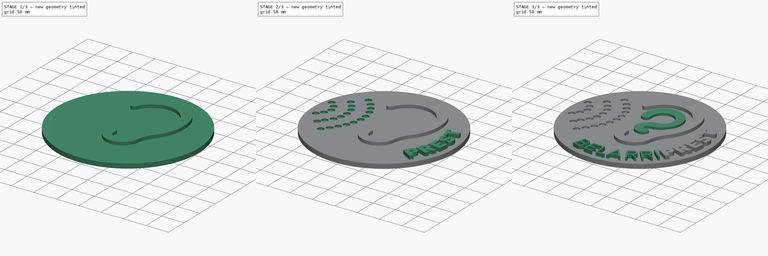
[diagram: build sequence overview — one tinted view per stage of 3, left to right]
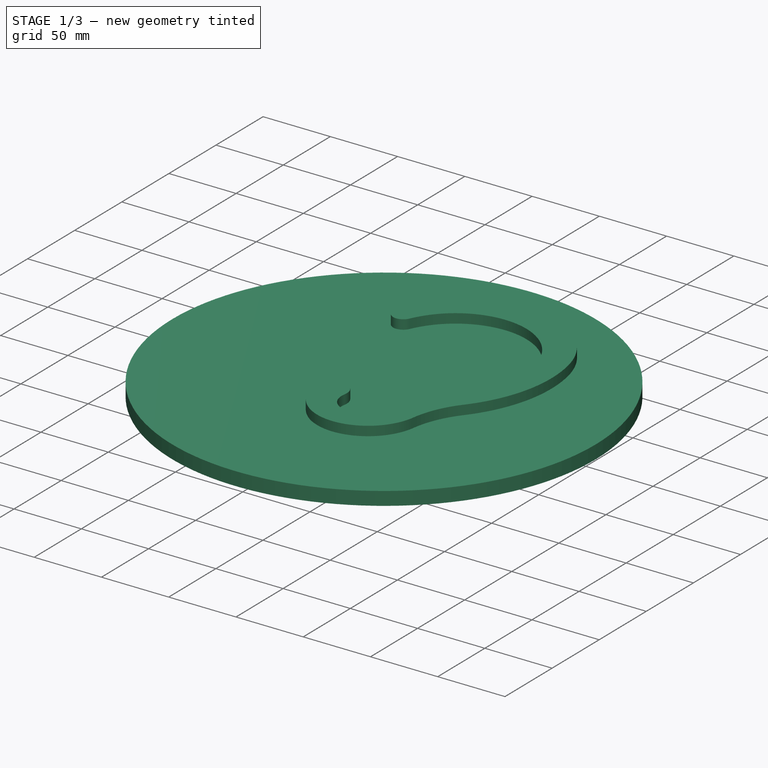
[diagram: stage 1 of 3 — iso view after this stage's code; geometry added in this stage tinted green]
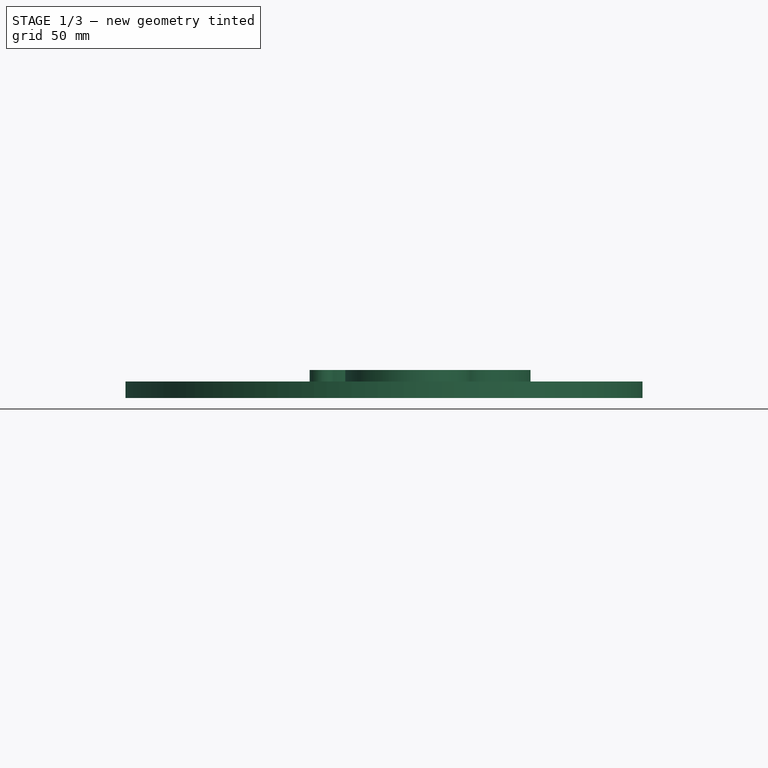
[diagram: stage 1 of 3 — front view after this stage's code; geometry added in this stage tinted green]
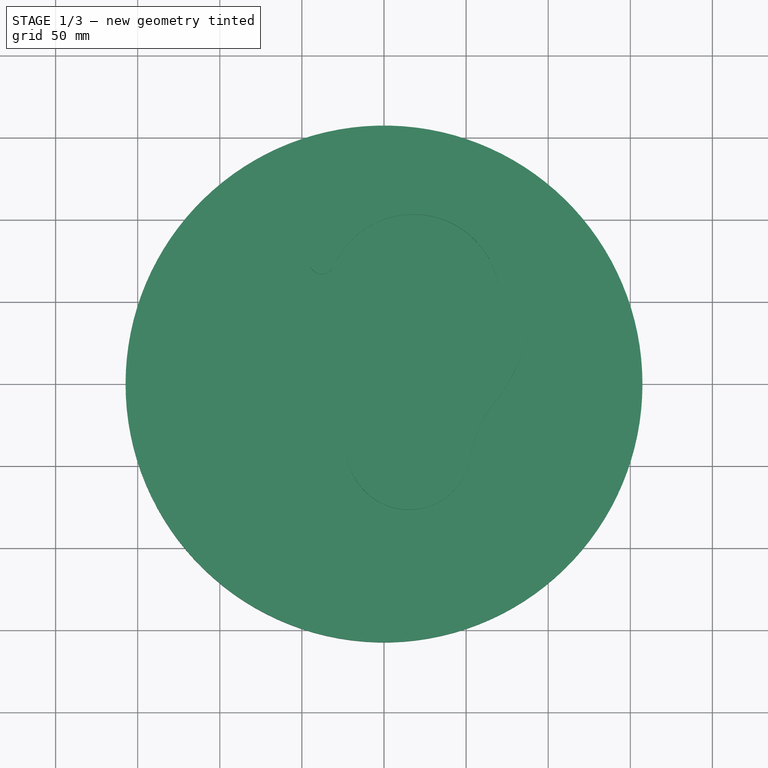
[diagram: stage 1 of 3 — top view after this stage's code; geometry added in this stage tinted green]
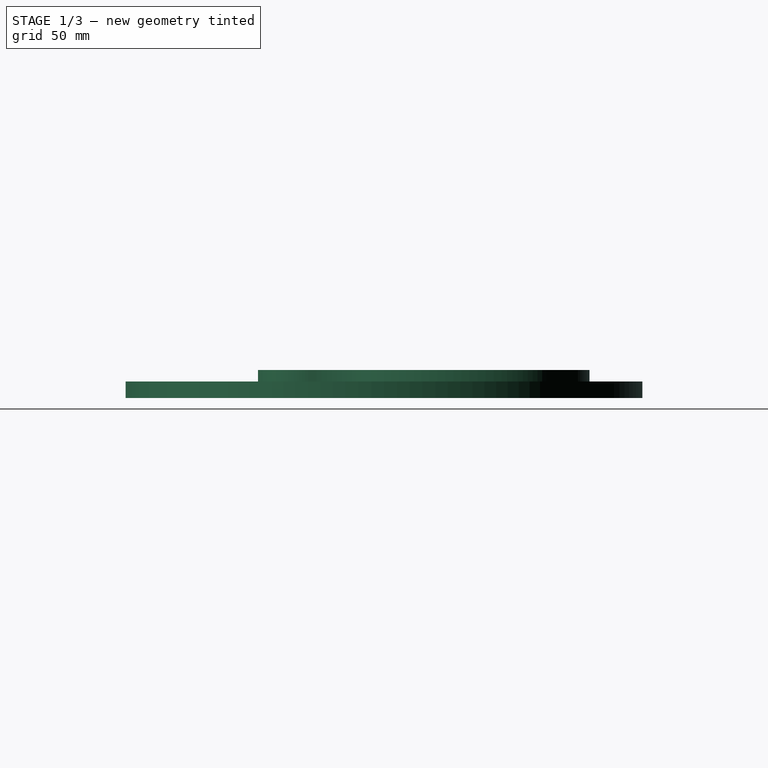
[diagram: stage 1 of 3 — right view after this stage's code; geometry added in this stage tinted green]
FCSTD DOCUMENT  (FreeCAD 0.17R13509 (Git))
Label: belarribiziprint
License: All rights reserved
LicenseURL: http://en.wikipedia.org/wiki/All_rights_reserved
objects: Sketcher::SketchObject×7, PartDesign::Pad×5, Image::ImagePlane×1, PartDesign::Pocket×1, PartDesign::Body×1
note: 20 computed .brp shape members not serialized (recipe doc carries the construction recipe); baked Part::Feature solids carry a one-line shape summary decoded from their .brp

FEATURE [Image::ImagePlane] ImagePlane
  XSize = 353
  YSize = 353
FEATURE [Sketcher::SketchObject] Sketch
  MapMode = 5
  Support = -> [XY_Plane]
  sketch-geometry (1):
    g0: Circle CenterX=0 CenterY=0 CenterZ=0 NormalX=0 NormalY=0 NormalZ=1 AngleXU=0 Radius=157.395
FEATURE [Sketcher::SketchObject] Sketch001
  MapMode = 5
  sketch-geometry (13):
    g0: ArcOfCircle CenterX=17.8472 CenterY=50.3819 CenterZ=0 NormalX=0 NormalY=0 NormalZ=1 AngleXU=0 Radius=52.8017 StartAngle=6.2229 EndAngle=8.72772
    g1: ArcOfCircle CenterX=21.4621 CenterY=47.3553 CenterZ=0 NormalX=0 NormalY=0 NormalZ=1 AngleXU=0 Radius=57.5163 StartAngle=2.44453 EndAngle=2.71335
    g2: ArcOfCircle CenterX=-37.7398 CenterY=74.3807 CenterZ=0 NormalX=0 NormalY=0 NormalZ=1 AngleXU=0 Radius=7.56233 StartAngle=2.85018 EndAngle=5.85494
    g3: ArcOfCircle CenterX=20.3403 CenterY=56.9594 CenterZ=0 NormalX=0 NormalY=0 NormalZ=1 AngleXU=0 Radius=68.199 StartAngle=0.216657 EndAngle=2.85018
    g4: ArcOfCircle CenterX=-9.33883 CenterY=50.4266 CenterZ=0 NormalX=0 NormalY=0 NormalZ=1 AngleXU=0 Radius=98.5886 StartAngle=5.6004 EndAngle=6.49984
    g5: ArcOfCircle CenterX=119.355 CenterY=-54.2383 CenterZ=0 NormalX=0 NormalY=0 NormalZ=1 AngleXU=0 Radius=67.2938 StartAngle=2.4588 EndAngle=2.99451
    g6: ArcOfCircle CenterX=15.3255 CenterY=-38.8257 CenterZ=0 NormalX=0 NormalY=0 NormalZ=1 AngleXU=0 Radius=37.8717 StartAngle=3.88556 EndAngle=6.1361
    g7: ArcOfCircle CenterX=18.7419 CenterY=-35.6812 CenterZ=0 NormalX=0 NormalY=0 NormalZ=1 AngleXU=0 Radius=42.515 StartAngle=3.24432 EndAngle=3.88556
    g8: ArcOfCircle CenterX=-12.0422 CenterY=-38.8548 CenterZ=0 NormalX=0 NormalY=0 NormalZ=1 AngleXU=0 Radius=11.5677 StartAngle=6.10631 EndAngle=9.52751
    g9: ArcOfCircle CenterX=14.5445 CenterY=-43.6069 CenterZ=0 NormalX=0 NormalY=0 NormalZ=1 AngleXU=0 Radius=15.4403 StartAngle=2.96472 EndAngle=6.16701
    g10: ArcOfCircle CenterX=122.094 CenterY=-56.1575 CenterZ=0 NormalX=0 NormalY=0 NormalZ=1 AngleXU=0 Radius=92.8386 StartAngle=2.6782 EndAngle=3.02542
    g11: ArcOfCircle CenterX=178.448 CenterY=-84.3171 CenterZ=0 NormalX=0 NormalY=0 NormalZ=1 AngleXU=0 Radius=155.837 StartAngle=2.45776 EndAngle=2.6782
    g12: ArcOfCircle CenterX=12.8033 CenterY=50.6864 CenterZ=0 NormalX=0 NormalY=0 NormalZ=1 AngleXU=0 Radius=57.8548 StartAngle=5.59935 EndAngle=6.2229
  constraints (15):
    c: Tangent(g1,g2)
    c: Tangent(g3,g4)
    c: Tangent(g6,g5) = 1.5708
    c: Tangent(g5,g4) = 1.5708
    c: Tangent(g4,g3) = -1.5708
    c: Tangent(g3,g2) = -1.5708
    c: Tangent(g2,g1) = 1.5708
    c: Tangent(g1,g0) = -1.5708
    c: Tangent(g12,g0) = -1.5708
    c: Tangent(g12,g11) = 1.5708
    c: Tangent(g11,g10) = -1.5708
    c: Tangent(g10,g9) = 1.5708
    c: Tangent(g9,g8) = 1.5708
    c: Tangent(g8,g7) = -1.5708
    c: Tangent(g7,g6) = -1.5708
FEATURE [PartDesign::Pad] Pad
  Length = 10
  Length2 = 100
  Profile = -> Sketch
  Refine = true
  Type = 0
FEATURE [PartDesign::Pad] Pad001
  BaseFeature = -> Pad
  Length = 17
  Length2 = 100
  Profile = -> Sketch001
  Refine = true
  Type = 0
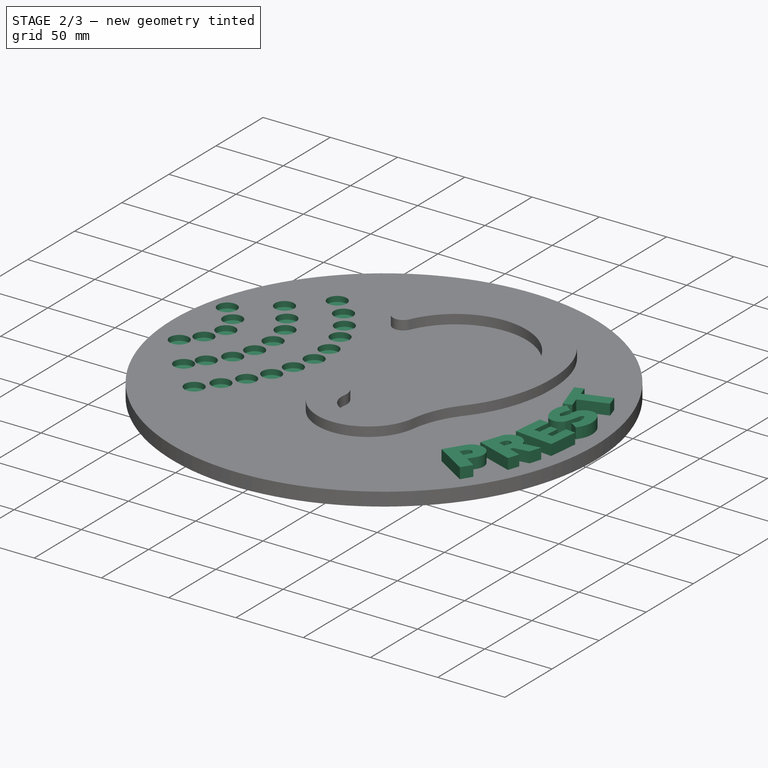
[diagram: stage 2 of 3 — iso view after this stage's code; geometry added in this stage tinted green]
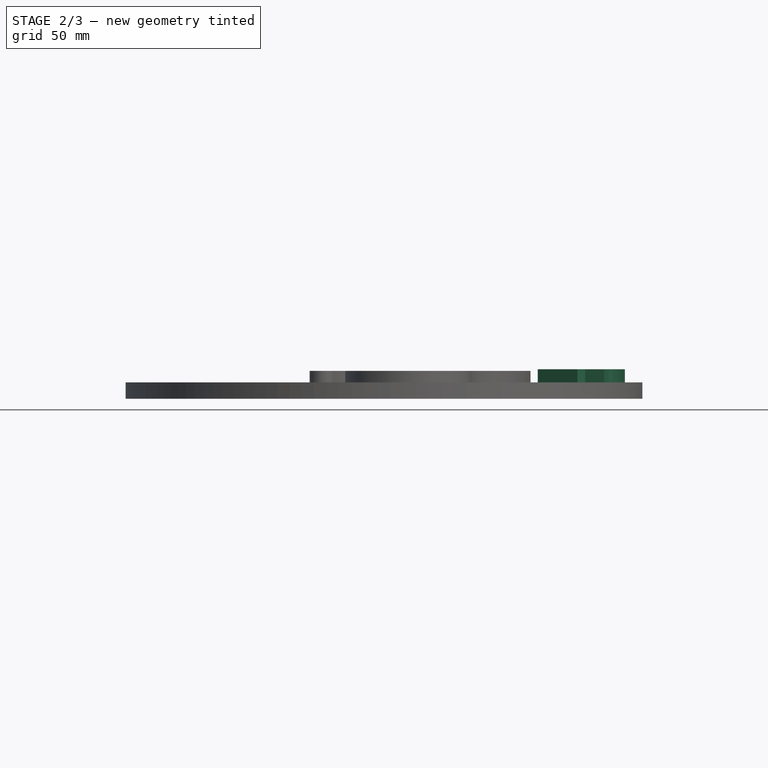
[diagram: stage 2 of 3 — front view after this stage's code; geometry added in this stage tinted green]
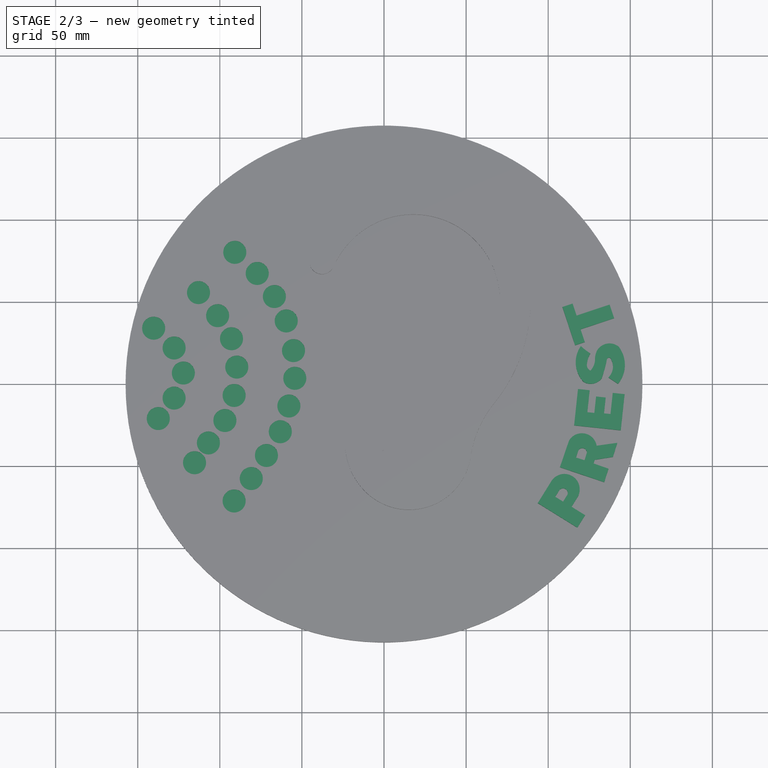
[diagram: stage 2 of 3 — top view after this stage's code; geometry added in this stage tinted green]
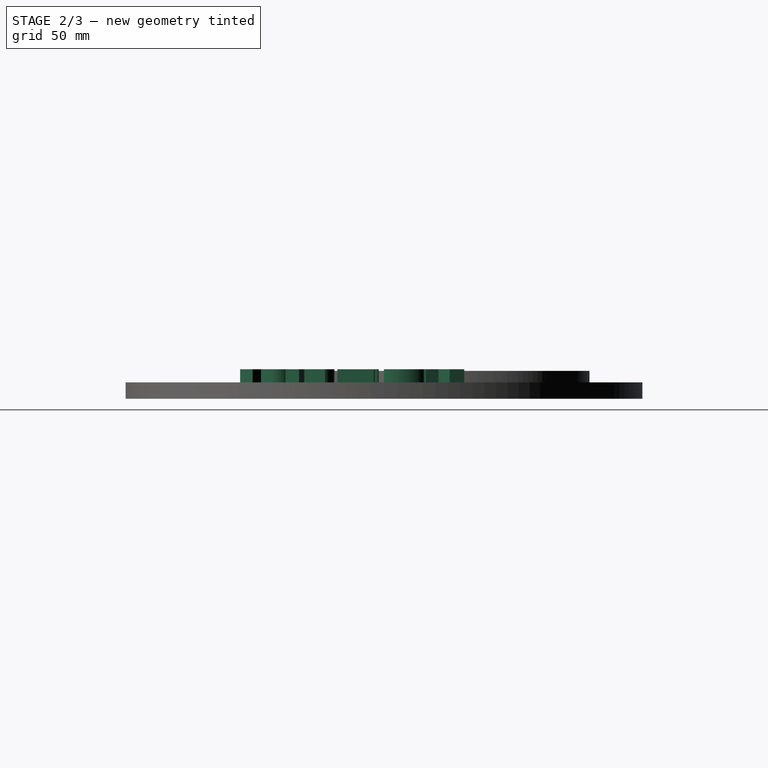
[diagram: stage 2 of 3 — right view after this stage's code; geometry added in this stage tinted green]
FEATURE [Sketcher::SketchObject] Sketch002
  MapMode = 5
  Placement = pos=(0,0,10) rot=(0,0,1;0rad)
  Support = -> [Pad001]
  sketch-geometry (24):
    g0: Circle CenterX=-90.8768 CenterY=80.1764 CenterZ=0 NormalX=0 NormalY=0 NormalZ=1 AngleXU=0 Radius=7.01585
    g1: Circle CenterX=-77.2181 CenterY=67.3212 CenterZ=0 NormalX=0 NormalY=0 NormalZ=1 AngleXU=0 Radius=7.01585
    g2: Circle CenterX=-66.7732 CenterY=53.2607 CenterZ=0 NormalX=0 NormalY=0 NormalZ=1 AngleXU=0 Radius=7.01585
    g3: Circle CenterX=-59.5422 CenterY=38.3969 CenterZ=0 NormalX=0 NormalY=0 NormalZ=1 AngleXU=0 Radius=7.01585
    g4: Circle CenterX=-55.1232 CenterY=20.3192 CenterZ=0 NormalX=0 NormalY=0 NormalZ=1 AngleXU=0 Radius=7.01585
    g5: Circle CenterX=-54.3197 CenterY=3.44667 CenterZ=0 NormalX=0 NormalY=0 NormalZ=1 AngleXU=0 Radius=7.01585
    g6: Circle CenterX=-57.9353 CenterY=-13.4259 CenterZ=0 NormalX=0 NormalY=0 NormalZ=1 AngleXU=0 Radius=7.01585
    g7: Circle CenterX=-63.1577 CenterY=-29.0932 CenterZ=0 NormalX=0 NormalY=0 NormalZ=1 AngleXU=0 Radius=7.01585
    g8: Circle CenterX=-89.6716 CenterY=10.276 CenterZ=0 NormalX=0 NormalY=0 NormalZ=1 AngleXU=0 Radius=7.01585
    g9: Circle CenterX=-71.5939 CenterY=-43.5553 CenterZ=0 NormalX=0 NormalY=0 NormalZ=1 AngleXU=0 Radius=7.01585
    g10: Circle CenterX=-96.9027 CenterY=-22.2638 CenterZ=0 NormalX=0 NormalY=0 NormalZ=1 AngleXU=0 Radius=7.01585
    g11: Circle CenterX=-106.946 CenterY=-35.9225 CenterZ=0 NormalX=0 NormalY=0 NormalZ=1 AngleXU=0 Radius=7.01585
    g12: Circle CenterX=-91.2786 CenterY=-6.99823 CenterZ=0 NormalX=0 NormalY=0 NormalZ=1 AngleXU=0 Radius=7.01585
    g13: Circle CenterX=-80.8337 CenterY=-57.6158 CenterZ=0 NormalX=0 NormalY=0 NormalZ=1 AngleXU=0 Radius=7.01585
    g14: Circle CenterX=-91.2786 CenterY=-71.2745 CenterZ=0 NormalX=0 NormalY=0 NormalZ=1 AngleXU=0 Radius=7.01585
    g15: Circle CenterX=-115.382 CenterY=-47.9743 CenterZ=0 NormalX=0 NormalY=0 NormalZ=1 AngleXU=0 Radius=7.01585
    g16: Circle CenterX=-92.8855 CenterY=27.5503 CenterZ=0 NormalX=0 NormalY=0 NormalZ=1 AngleXU=0 Radius=7.01585
    g17: Circle CenterX=-101.322 CenterY=41.6107 CenterZ=0 NormalX=0 NormalY=0 NormalZ=1 AngleXU=0 Radius=7.01585
    g18: Circle CenterX=-112.972 CenterY=55.6711 CenterZ=0 NormalX=0 NormalY=0 NormalZ=1 AngleXU=0 Radius=7.01585
    g19: Circle CenterX=-140.289 CenterY=33.9779 CenterZ=0 NormalX=0 NormalY=0 NormalZ=1 AngleXU=0 Radius=7.01585
    g20: Circle CenterX=-127.836 CenterY=21.9261 CenterZ=0 NormalX=0 NormalY=0 NormalZ=1 AngleXU=0 Radius=7.01585
    g21: Circle CenterX=-137.477 CenterY=-21.0587 CenterZ=0 NormalX=0 NormalY=0 NormalZ=1 AngleXU=0 Radius=7.01585
    g22: Circle CenterX=-127.836 CenterY=-8.60514 CenterZ=0 NormalX=0 NormalY=0 NormalZ=1 AngleXU=0 Radius=7.01585
    g23: Circle CenterX=-122.211 CenterY=6.66047 CenterZ=0 NormalX=0 NormalY=0 NormalZ=1 AngleXU=0 Radius=7.01585
  constraints (23):
    c: Equal(g0,g1)
    c: Equal(g1,g2)
    c: Equal(g2,g3)
    c: Equal(g3,g4)
    c: Equal(g4,g5)
    c: Equal(g5,g6)
    c: Equal(g6,g7)
    c: Equal(g7,g8)
    c: Equal(g8,g12)
    c: Equal(g12,g10)
    c: Equal(g10,g9)
    c: Equal(g9,g11)
    c: Equal(g11,g15)
    c: Equal(g15,g13)
    c: Equal(g13,g14)
    c: Equal(g0,g16)
    c: Equal(g16,g17)
    c: Equal(g17,g18)
    c: Equal(g18,g19)
    c: Equal(g19,g20)
    c: Equal(g20,g21)
    c: Equal(g21,g22)
    c: Equal(g22,g23)
FEATURE [PartDesign::Pocket] Pocket
  BaseFeature = -> Pad001
  Length = 4
  Length2 = 100
  Profile = -> Sketch002
  Refine = true
  Type = 0
FEATURE [Sketcher::SketchObject] Sketch003
  MapMode = 5
  Support = -> [XY_Plane]
  sketch-geometry (128):
    g0: LineSegment StartX=-45.5117 StartY=-110.116 StartZ=0 EndX=-32.5193 EndY=-114.072 EndZ=0
    g1: LineSegment StartX=-35.0481 StartY=-115.808 StartZ=0 EndX=-42.73 EndY=-113.469 EndZ=0
    g2: LineSegment StartX=-42.73 StartY=-113.469 StartZ=0 EndX=-45.5213 EndY=-122.636 EndZ=0
    g3: LineSegment StartX=-45.5213 StartY=-122.636 StartZ=0 EndX=-37.8394 EndY=-124.975 EndZ=0
    g4: LineSegment StartX=-38.0733 StartY=-127.797 StartZ=0 EndX=-46.3297 EndY=-125.283 EndZ=0
    g5: LineSegment StartX=-46.3297 StartY=-125.283 StartZ=0 EndX=-49.3211 EndY=-135.108 EndZ=0
    g6: LineSegment StartX=-49.3211 StartY=-135.108 StartZ=0 EndX=-41.0647 EndY=-137.622 EndZ=0
    g7: ArcOfCircle CenterX=-35.9888 CenterY=-120.271 CenterZ=0 NormalX=0 NormalY=0 NormalZ=1 AngleXU=0 Radius=7.10345 StartAngle=4.89729 EndAngle=7.34371
    g8: ArcOfCircle CenterX=-38.6597 CenterY=-133.551 CenterZ=0 NormalX=0 NormalY=0 NormalZ=1 AngleXU=0 Radius=7.44833 StartAngle=4.33349 EndAngle=7.29074
    g9: LineSegment StartX=-41.4148 StartY=-140.471 StartZ=0 EndX=-53.6822 EndY=-136.736 EndZ=0
    g10: ArcOfCircle CenterX=-36.4437 CenterY=-120.391 CenterZ=0 NormalX=0 NormalY=0 NormalZ=1 AngleXU=0 Radius=4.79139 StartAngle=4.41682 EndAngle=7.55841
    g11: ArcOfCircle CenterX=-39.569 CenterY=-132.709 CenterZ=0 NormalX=0 NormalY=0 NormalZ=1 AngleXU=0 Radius=5.13485 StartAngle=4.41682 EndAngle=7.55841
    g12: LineSegment StartX=-21.6695 StartY=-116.304 StartZ=0 EndX=-24.7768 EndY=-144.743 EndZ=0
    g13: LineSegment StartX=-24.7768 StartY=-144.743 StartZ=0 EndX=-5.59434 EndY=-146.839 EndZ=0
    g14: LineSegment StartX=-5.59434 StartY=-146.839 StartZ=0 EndX=-5.28492 EndY=-144.007 EndZ=0
    g15: LineSegment StartX=-5.28492 StartY=-144.007 StartZ=0 EndX=-20.4543 EndY=-142.349 EndZ=0
    g16: LineSegment StartX=-20.4543 StartY=-142.349 StartZ=0 EndX=-19.3664 EndY=-132.393 EndZ=0
    g17: LineSegment StartX=-19.3664 StartY=-132.393 StartZ=0 EndX=-7.34057 EndY=-133.707 EndZ=0
    g18: LineSegment StartX=-7.34057 StartY=-133.707 StartZ=0 EndX=-6.99 EndY=-130.498 EndZ=0
    g19: LineSegment StartX=-6.99 StartY=-130.498 StartZ=0 EndX=-19.7087 EndY=-129.109 EndZ=0
    g20: LineSegment StartX=-19.7087 StartY=-129.109 StartZ=0 EndX=-18.7139 EndY=-120.005 EndZ=0
    g21: LineSegment StartX=-18.7139 StartY=-120.005 StartZ=0 EndX=-2.96797 EndY=-121.725 EndZ=0
    g22: LineSegment StartX=-2.96797 StartY=-121.725 StartZ=0 EndX=-2.60321 EndY=-118.387 EndZ=0
    g23: LineSegment StartX=-2.60321 StartY=-118.387 StartZ=0 EndX=-21.6695 EndY=-116.304 EndZ=0
    g24: LineSegment StartX=1.13944 StartY=-118.465 StartZ=0 EndX=4.49615 EndY=-118.169 EndZ=0
    g25: LineSegment StartX=4.49615 StartY=-118.169 StartZ=0 EndX=6.73656 EndY=-143.545 EndZ=0
    g26: LineSegment StartX=6.73656 StartY=-143.545 StartZ=0 EndX=20.7174 EndY=-142.311 EndZ=0
    g27: LineSegment StartX=20.7174 StartY=-142.311 StartZ=0 EndX=20.9917 EndY=-145.417 EndZ=0
    g28: LineSegment StartX=20.9917 StartY=-145.417 StartZ=0 EndX=3.6541 EndY=-146.948 EndZ=0
    g29: LineSegment StartX=3.6541 StartY=-146.948 StartZ=0 EndX=1.13944 EndY=-118.465 EndZ=0
    g30: LineSegment StartX=25.9643 StartY=-144.824 StartZ=0 EndX=29.1647 EndY=-144.016 EndZ=0
    g31: LineSegment StartX=29.1647 StartY=-144.016 StartZ=0 EndX=30.2157 EndY=-136.805 EndZ=0
    g32: LineSegment StartX=30.2157 StartY=-136.805 StartZ=0 EndX=44.394 EndY=-133.225 EndZ=0
    g33: LineSegment StartX=44.394 StartY=-133.225 StartZ=0 EndX=48.6664 EndY=-138.264 EndZ=0
    g34: LineSegment StartX=48.6664 StartY=-138.264 StartZ=0 EndX=52.7651 EndY=-137.229 EndZ=0
    g35: LineSegment StartX=52.7651 StartY=-137.229 StartZ=0 EndX=32.5681 EndY=-113.41 EndZ=0
    g36: LineSegment StartX=32.5681 StartY=-113.41 StartZ=0 EndX=30.4653 EndY=-113.941 EndZ=0
    g37: LineSegment StartX=30.4653 StartY=-113.941 StartZ=0 EndX=25.9643 EndY=-144.824 EndZ=0
    g38: LineSegment StartX=30.9647 StartY=-133.309 StartZ=0 EndX=33.0858 EndY=-118.755 EndZ=0
    g39: LineSegment StartX=33.0858 StartY=-118.755 StartZ=0 EndX=42.8763 EndY=-130.301 EndZ=0
    g40: LineSegment StartX=42.8763 StartY=-130.301 StartZ=0 EndX=30.9647 EndY=-133.309 EndZ=0
    g41: LineSegment StartX=57.7051 StartY=-102.796 StartZ=0 EndX=46.8053 EndY=-108.709 EndZ=0
    g42: LineSegment StartX=46.8053 StartY=-108.709 StartZ=0 EndX=60.4229 EndY=-133.811 EndZ=0
    g43: LineSegment StartX=60.4229 StartY=-133.811 StartZ=0 EndX=63.5453 EndY=-132.117 EndZ=0
    g44: LineSegment StartX=63.5453 StartY=-132.117 StartZ=0 EndX=57.8431 EndY=-121.606 EndZ=0
    g45: LineSegment StartX=57.8431 StartY=-121.606 StartZ=0 EndX=64.4783 EndY=-118.006 EndZ=0
    g46: LineSegment StartX=64.4783 StartY=-118.006 StartZ=0 EndX=75.345 EndY=-125.328 EndZ=0
    g47: LineSegment StartX=75.345 StartY=-125.328 StartZ=0 EndX=78.1753 EndY=-123.793 EndZ=0
    g48: LineSegment StartX=78.1753 StartY=-123.793 StartZ=0 EndX=67.1829 EndY=-116.118 EndZ=0
    g49: ArcOfCircle CenterX=61.6322 CenterY=-110.035 CenterZ=0 NormalX=0 NormalY=0 NormalZ=1 AngleXU=0 Radius=8.23545 StartAngle=5.452 EndAngle=8.35105
    g50: LineSegment StartX=59.102 StartY=-105.624 StartZ=0 EndX=51.2046 EndY=-109.909 EndZ=0
    g51: LineSegment StartX=51.2046 StartY=-109.909 StartZ=0 EndX=56.1435 EndY=-119.013 EndZ=0
    g52: LineSegment StartX=56.1435 StartY=-119.013 StartZ=0 EndX=64.0528 EndY=-114.722 EndZ=0
    g53: ArcOfCircle CenterX=61.2489 CenterY=-110.352 CenterZ=0 NormalX=0 NormalY=0 NormalZ=1 AngleXU=0 Radius=5.19223 StartAngle=5.28286 EndAngle=8.28026
    g54: LineSegment StartX=86.7895 StartY=-99.1129 StartZ=0 EndX=79.47 EndY=-105.435 EndZ=0
    g55: LineSegment StartX=79.47 StartY=-105.435 StartZ=0 EndX=72.2633 EndY=-97.2377 EndZ=0
    g56: LineSegment StartX=72.2633 StartY=-97.2377 StartZ=0 EndX=79.3369 EndY=-91.1276 EndZ=0
    g57: ArcOfCircle CenterX=82.5115 CenterY=-95.6351 CenterZ=0 NormalX=0 NormalY=0 NormalZ=1 AngleXU=0 Radius=5.51323 StartAngle=5.6006 EndAngle=8.46758
    g58: LineSegment StartX=77.9327 StartY=-88.7161 StartZ=0 EndX=67.9814 EndY=-97.312 EndZ=0
    g59: LineSegment StartX=67.9814 StartY=-97.312 StartZ=0 EndX=86.6124 EndY=-118.505 EndZ=0
    g60: LineSegment StartX=86.6124 StartY=-118.505 StartZ=0 EndX=89.0518 EndY=-116.398 EndZ=0
    g61: LineSegment StartX=89.0518 StartY=-116.398 StartZ=0 EndX=81.0378 EndY=-107.441 EndZ=0
    g62: LineSegment StartX=81.0378 StartY=-107.441 StartZ=0 EndX=86.9055 EndY=-102.373 EndZ=0
    g63: LineSegment StartX=86.9055 StartY=-102.373 StartZ=0 EndX=100.016 EndY=-107.171 EndZ=0
    g64: LineSegment StartX=100.016 StartY=-107.171 StartZ=0 EndX=102.492 EndY=-105.032 EndZ=0
    g65: LineSegment StartX=102.492 StartY=-105.032 StartZ=0 EndX=90.0008 EndY=-100.111 EndZ=0
    g66: ArcOfCircle CenterX=83.2908 CenterY=-95.1345 CenterZ=0 NormalX=0 NormalY=0 NormalZ=1 AngleXU=0 Radius=8.35396 StartAngle=5.64505 EndAngle=8.54965
    g67: LineSegment StartX=89.3564 StartY=-76.9552 StartZ=0 EndX=111.022 EndY=-95.3108 EndZ=0
    g68: LineSegment StartX=111.022 StartY=-95.3108 StartZ=0 EndX=108.799 EndY=-97.9344 EndZ=0
    g69: LineSegment StartX=108.799 StartY=-97.9344 StartZ=0 EndX=87.1336 EndY=-79.5788 EndZ=0
    g70: LineSegment StartX=87.1336 StartY=-79.5788 StartZ=0 EndX=89.3564 EndY=-76.9552 EndZ=0
    g71: LineSegment StartX=101.933 StartY=-59.3353 StartZ=0 EndX=93.6548 EndY=-72.6767 EndZ=0
    g72: LineSegment StartX=93.6548 StartY=-72.6767 StartZ=0 EndX=117.758 EndY=-87.6332 EndZ=0
    g73: LineSegment StartX=117.758 StartY=-87.6332 StartZ=0 EndX=122.473 EndY=-80.0344 EndZ=0
    g74: LineSegment StartX=122.473 StartY=-80.0344 StartZ=0 EndX=114.219 EndY=-74.9123 EndZ=0
    g75: LineSegment StartX=114.219 StartY=-74.9123 StartZ=0 EndX=117.782 EndY=-69.1697 EndZ=0
    g76: LineSegment StartX=106.812 StartY=-64.7597 StartZ=0 EndX=104.287 EndY=-68.8293 EndZ=0
    g77: LineSegment StartX=104.287 StartY=-68.8293 StartZ=0 EndX=109.075 EndY=-71.8004 EndZ=0
    g78: LineSegment StartX=109.075 StartY=-71.8004 StartZ=0 EndX=111.76 EndY=-67.4737 EndZ=0
    g79: ArcOfCircle CenterX=109.042 CenterY=-66.5614 CenterZ=0 NormalX=0 NormalY=0 NormalZ=1 AngleXU=0 Radius=2.86678 StartAngle=5.95933 EndAngle=8.74516
    g80: ArcOfCircle CenterX=109.858 CenterY=-64.2525 CenterZ=0 NormalX=0 NormalY=0 NormalZ=1 AngleXU=0 Radius=9.32608 StartAngle=5.72782 EndAngle=8.86941
    g81: LineSegment StartX=129.51 StartY=-37.7499 StartZ=0 EndX=142.089 EndY=-35.9669 EndZ=0
    g82: LineSegment StartX=142.089 StartY=-35.9669 StartZ=0 EndX=139.449 EndY=-44.5502 EndZ=0
    g83: LineSegment StartX=139.449 StartY=-44.5502 StartZ=0 EndX=128.368 EndY=-46.2993 EndZ=0
    g84: LineSegment StartX=128.368 StartY=-46.2993 StartZ=0 EndX=127.609 EndY=-48.5369 EndZ=0
    g85: LineSegment StartX=127.609 StartY=-48.5369 StartZ=0 EndX=136.761 EndY=-51.7335 EndZ=0
    g86: LineSegment StartX=136.761 StartY=-51.7335 StartZ=0 EndX=134.133 EndY=-59.9533 EndZ=0
    g87: LineSegment StartX=134.133 StartY=-59.9533 StartZ=0 EndX=107.132 EndY=-50.8322 EndZ=0
    g88: LineSegment StartX=107.132 StartY=-50.8322 StartZ=0 EndX=112.672 EndY=-34.662 EndZ=0
    g89: LineSegment StartX=118.495 StartY=-40.3737 StartZ=0 EndX=116.917 EndY=-44.9376 EndZ=0
    g90: LineSegment StartX=116.917 StartY=-44.9376 StartZ=0 EndX=122.112 EndY=-46.6039 EndZ=0
    g91: LineSegment StartX=122.112 StartY=-46.6039 StartZ=0 EndX=123.584 EndY=-41.9498 EndZ=0
    g92: ArcOfCircle CenterX=120.53 CenterY=-39.2664 CenterZ=0 NormalX=0 NormalY=0 NormalZ=1 AngleXU=0 Radius=9.10749 StartAngle=0.167297 EndAngle=2.61156
    g93: ArcOfCircle CenterX=120.78 CenterY=-41.9997 CenterZ=0 NormalX=0 NormalY=0 NormalZ=1 AngleXU=0 Radius=2.80445 StartAngle=0.0177807 EndAngle=2.52312
    g94: LineSegment StartX=118.143 StartY=-3.19466 StartZ=0 EndX=115.79 EndY=-25.3497 EndZ=0
    g95: LineSegment StartX=115.79 StartY=-25.3497 StartZ=0 EndX=144.196 EndY=-28.3675 EndZ=0
    g96: LineSegment StartX=144.196 StartY=-28.3675 StartZ=0 EndX=146.538 EndY=-6.32422 EndZ=0
    g97: LineSegment StartX=146.538 StartY=-6.32422 StartZ=0 EndX=139.315 EndY=-5.55688 EndZ=0
    g98: LineSegment StartX=139.315 StartY=-5.55688 StartZ=0 EndX=137.946 EndY=-18.4391 EndZ=0
    g99: LineSegment StartX=137.946 StartY=-18.4391 StartZ=0 EndX=133.998 EndY=-18.0196 EndZ=0
    g100: LineSegment StartX=133.998 StartY=-18.0196 StartZ=0 EndX=135.023 EndY=-8.36961 EndZ=0
    g101: LineSegment StartX=135.023 StartY=-8.36961 StartZ=0 EndX=129.168 EndY=-7.74762 EndZ=0
    g102: LineSegment StartX=129.168 StartY=-7.74762 StartZ=0 EndX=128.103 EndY=-17.7695 EndZ=0
    g103: LineSegment StartX=128.103 StartY=-17.7695 StartZ=0 EndX=123.834 EndY=-17.3159 EndZ=0
    g104: LineSegment StartX=123.834 StartY=-17.3159 StartZ=0 EndX=125.254 EndY=-3.95004 EndZ=0
    g105: LineSegment StartX=125.254 StartY=-3.95004 StartZ=0 EndX=118.143 EndY=-3.19466 EndZ=0
    g106: LineSegment StartX=114.893 StartY=48.8449 StartZ=0 EndX=117.307 EndY=41.5557 EndZ=0
    g107: LineSegment StartX=117.307 StartY=41.5557 StartZ=0 EndX=137.421 EndY=48.2168 EndZ=0
    g108: LineSegment StartX=137.421 StartY=48.2168 StartZ=0 EndX=140.16 EndY=39.9465 EndZ=0
    g109: LineSegment StartX=140.16 StartY=39.9465 StartZ=0 EndX=119.734 EndY=33.1819 EndZ=0
    g110: LineSegment StartX=119.734 StartY=33.1819 StartZ=0 EndX=122.307 EndY=25.412 EndZ=0
    g111: LineSegment StartX=122.307 StartY=25.412 StartZ=0 EndX=116.375 EndY=23.4476 EndZ=0
    g112: LineSegment StartX=116.375 StartY=23.4476 StartZ=0 EndX=108.649 EndY=46.777 EndZ=0
    g113: LineSegment StartX=108.649 StartY=46.777 StartZ=0 EndX=114.893 EndY=48.8449 EndZ=0
    g114: ArcOfCircle CenterX=137.378 CenterY=15.7638 CenterZ=0 NormalX=0 NormalY=0 NormalZ=1 AngleXU=0 Radius=8.81218 StartAngle=0.893737 EndAngle=2.66518
    g115: ArcOfCircle CenterX=128.556 CenterY=11.5239 CenterZ=0 NormalX=0 NormalY=0 NormalZ=1 AngleXU=0 Radius=18.1411 StartAngle=5.59031 EndAngle=6.94219
    g116: ArcOfCircle CenterX=130.409 CenterY=10.4037 CenterZ=0 NormalX=0 NormalY=0 NormalZ=1 AngleXU=0 Radius=9.0442 StartAngle=5.47275 EndAngle=6.77405
    g117: ArcOfCircle CenterX=140.5 CenterY=14.8779 CenterZ=0 NormalX=0 NormalY=0 NormalZ=1 AngleXU=0 Radius=12.0104 StartAngle=2.71887 EndAngle=3.20771
    g118: ArcOfCircle CenterX=117.796 CenterY=15.2583 CenterZ=0 NormalX=0 NormalY=0 NormalZ=1 AngleXU=0 Radius=10.7835 StartAngle=5.54317 EndAngle=6.17411
    g119: ArcOfCircle CenterX=127.363 CenterY=11.4593 CenterZ=0 NormalX=0 NormalY=0 NormalZ=1 AngleXU=0 Radius=3.82492 StartAngle=2.88159 EndAngle=4.27968
    g120: ArcOfCircle CenterX=137.451 CenterY=11.0892 CenterZ=0 NormalX=0 NormalY=0 NormalZ=1 AngleXU=0 Radius=13.8499 StartAngle=2.58139 EndAngle=3.04372
    g121: ArcOfCircle CenterX=149.434 CenterY=55.4096 CenterZ=0 NormalX=0 NormalY=0 NormalZ=1 AngleXU=0 Radius=43.9154 StartAngle=3.97464 EndAngle=4.14191
    g122: ArcOfCircle CenterX=133.813 CenterY=13.0513 CenterZ=0 NormalX=0 NormalY=0 NormalZ=1 AngleXU=0 Radius=17.0578 StartAngle=2.52515 EndAngle=3.9209
    g123: ArcOfCircle CenterX=125.85 CenterY=8.4424 CenterZ=0 NormalX=0 NormalY=0 NormalZ=1 AngleXU=0 Radius=8.47658 StartAngle=4.19788 EndAngle=5.63141
    g124: ArcOfCircle CenterX=59.7619 CenterY=29.2887 CenterZ=0 NormalX=0 NormalY=0 NormalZ=1 AngleXU=0 Radius=77.3248 StartAngle=5.94042 EndAngle=6.09232
    g125: ArcOfCircle CenterX=137.035 CenterY=14.5658 CenterZ=0 NormalX=0 NormalY=0 NormalZ=1 AngleXU=0 Radius=1.35408 StartAngle=0.0747555 EndAngle=3.10212
    g126: LineSegment StartX=136.643 StartY=3.85039 StartZ=0 EndX=142.514 EndY=-0.06378 EndZ=0
    g127: LineSegment StartX=-45.5117 StartY=-110.116 StartZ=0 EndX=-53.6822 EndY=-136.736 EndZ=0
  constraints (201):
    c: Coincident(g1,g2)
    c: Coincident(g2,g3)
    c: Coincident(g4,g5)
    c: Coincident(g5,g6)
    c: Coincident(g7,g0)
    c: PointOnObject(g8,g7)
    c: Coincident(g9,g8)
    c: Parallel(g0,g3)
    c: Parallel(g3,g1)
    c: Parallel(g1,g4)
    c: Parallel(g4,g6)
    c: Parallel(g6,g9)
    c: Parallel(g2,g5)
    c: Tangent(g10,g1) = -1.5708
    c: Tangent(g10,g3) = -1.5708
    c: Tangent(g11,g4) = -1.5708
    c: Tangent(g11,g6) = -1.5708
    c: Perpendicular(g3,g2)
    c: Coincident(g12,g13)
    c: Coincident(g13,g14)
    c: Coincident(g14,g15)
    c: Coincident(g15,g16)
    c: Coincident(g16,g17)
    c: Coincident(g17,g18)
    c: Coincident(g18,g19)
    c: Coincident(g19,g20)
    c: Coincident(g20,g21)
    c: Coincident(g21,g22)
    c: Coincident(g22,g23)
    c: Coincident(g23,g12)
    c: Parallel(g23,g21)
    c: Parallel(g21,g19)
    c: Parallel(g19,g17)
    c: Parallel(g17,g15)
    c: Parallel(g15,g13)
    c: Parallel(g22,g18)
    c: Parallel(g18,g14)
    c: Parallel(g14,g16)
    c: Parallel(g16,g20)
    c: Parallel(g20,g12)
    c: Perpendicular(g12,g23)
    c: Coincident(g24,g25)
    c: Coincident(g25,g26)
    c: Coincident(g26,g27)
    c: Coincident(g27,g28)
    c: Coincident(g28,g29)
    c: Coincident(g29,g24)
    c: Parallel(g24,g26)
    c: Parallel(g26,g28)
    c: Parallel(g25,g29)
    c: Parallel(g29,g27)
    c: Perpendicular(g29,g24)
    c: Coincident(g30,g31)
    c: Coincident(g31,g32)
    c: Coincident(g32,g33)
    c: Coincident(g33,g34)
    c: Coincident(g34,g35)
    c: Coincident(g35,g36)
    c: Coincident(g36,g37)
    c: Coincident(g37,g30)
    c: Coincident(g38,g39)
    c: Coincident(g39,g40)
    c: Coincident(g40,g38)
    c: Parallel(g36,g40)
    c: Parallel(g40,g32)
    c: Parallel(g32,g30)
    c: Parallel(g30,g34)
    c: Parallel(g38,g37)
    c: Parallel(g37,g31)
    c: Parallel(g35,g39)
    c: Parallel(g39,g33)
    c: Coincident(g41,g42)
    c: Coincident(g42,g43)
    c: Coincident(g43,g44)
    c: Coincident(g44,g45)
    c: Coincident(g45,g46)
    c: Coincident(g46,g47)
    c: Coincident(g47,g48)
    c: Tangent(g41,g49) = -1.5708
    c: Coincident(g50,g51)
    c: Coincident(g51,g52)
    c: Parallel(g41,g50)
    c: Parallel(g50,g52)
    c: Parallel(g52,g45)
    c: Parallel(g45,g43)
    c: Parallel(g43,g47)
    c: Coincident(g50,g53)
    c: Parallel(g42,g51)
    c: Parallel(g51,g44)
    c: Perpendicular(g41,g42)
    c: Coincident(g54,g55)
    c: Coincident(g55,g56)
    c: Coincident(g57,g54)
    c: Coincident(g57,g56)
    c: Coincident(g52,g53)
    c: Coincident(g58,g59)
    c: Coincident(g59,g60)
    c: Coincident(g60,g61)
    c: Coincident(g61,g62)
    c: Coincident(g62,g63)
    c: Coincident(g63,g64)
    c: Coincident(g64,g65)
    c: Parallel(g58,g56)
    c: Parallel(g56,g54)
    c: Parallel(g54,g62)
    c: Parallel(g62,g64)
    c: Parallel(g64,g60)
    c: Parallel(g55,g59)
    c: Coincident(g67,g68)
    c: Coincident(g68,g69)
    c: Parallel(g70,g68)
    c: Parallel(g67,g69)
    c: Perpendicular(g69,g70)
    c: Coincident(g67,g70)
    c: Coincident(g69,g70)
    c: Coincident(g71,g72)
    c: Coincident(g72,g73)
    c: Coincident(g73,g74)
    c: Coincident(g74,g75)
    c: Coincident(g76,g77)
    c: Coincident(g77,g78)
    c: Parallel(g71,g76)
    c: Parallel(g76,g78)
    c: Parallel(g78,g75)
    c: Parallel(g75,g73)
    c: Parallel(g77,g74)
    c: Parallel(g74,g72)
    c: Perpendicular(g74,g75)
    c: Tangent(g80,g75) = -1.5708
    c: Tangent(g80,g71) = -1.5708
    c: Coincident(g79,g78)
    c: Coincident(g81,g82)
    c: Coincident(g82,g83)
    c: Coincident(g83,g84)
    c: Coincident(g84,g85)
    c: Coincident(g85,g86)
    c: Coincident(g86,g87)
    c: Coincident(g87,g88)
    c: Coincident(g89,g90)
    c: Coincident(g90,g91)
    c: Coincident(g92,g81)
    c: Coincident(g88,g92)
    c: Coincident(g93,g89)
    c: Coincident(g91,g93)
    c: Coincident(g94,g95)
    c: Coincident(g95,g96)
    c: Coincident(g96,g97)
    c: Coincident(g97,g98)
    c: Coincident(g98,g99)
    c: Coincident(g99,g100)
    c: Coincident(g100,g101)
    c: Coincident(g101,g102)
    c: Coincident(g102,g103)
    c: Coincident(g103,g104)
    c: Coincident(g94,g105)
    c: Coincident(g104,g105)
    c: Parallel(g105,g103)
    c: Parallel(g103,g99)
    c: Parallel(g99,g97)
    c: Parallel(g97,g101)
    c: Parallel(g101,g95)
    c: Parallel(g94,g104)
    c: Parallel(g104,g102)
    c: Parallel(g102,g100)
    c: Parallel(g100,g98)
    c: Parallel(g98,g96)
    c: Perpendicular(g96,g97)
    c: Coincident(g106,g107)
    c: Coincident(g107,g108)
    c: Coincident(g108,g109)
    c: Coincident(g109,g110)
    c: Coincident(g110,g111)
    c: Coincident(g111,g112)
    c: Coincident(g112,g113)
    c: Coincident(g113,g106)
    c: Parallel(g113,g107)
    c: Parallel(g107,g109)
    c: Parallel(g109,g111)
    c: Parallel(g106,g112)
    c: Parallel(g112,g110)
    c: Parallel(g110,g108)
    c: Perpendicular(g108,g107)
    c: Coincident(g125,g116)
    c: Coincident(g124,g125)
    c: Coincident(g114,g115)
    c: Coincident(g115,g126)
    c: Coincident(g116,g126)
    c: Coincident(g122,g121)
    c: Coincident(g120,g121)
    c: Coincident(g117,g114)
    c: Coincident(g117,g118)
    c: Coincident(g118,g119)
    c: Coincident(g119,g120)
    c: Coincident(g123,g122)
    c: Coincident(g123,g124)
    c: Coincident(g7,g8)
    c: Coincident(g127,g0)
    c: Coincident(g127,g9)
    c: Coincident(g79,g76)
    c: Coincident(g48,g49)
    c: Coincident(g65,g66)
FEATURE [Sketcher::SketchObject] Sketch004
  MapMode = 5
  Support = -> [XY_Plane]
  sketch-geometry (72):
    g0: LineSegment StartX=-45.5117 StartY=-110.116 StartZ=0 EndX=-32.5193 EndY=-114.072 EndZ=0
    g1: LineSegment StartX=-35.0481 StartY=-115.808 StartZ=0 EndX=-42.73 EndY=-113.469 EndZ=0
    g2: LineSegment StartX=-42.73 StartY=-113.469 StartZ=0 EndX=-45.5213 EndY=-122.636 EndZ=0
    g3: LineSegment StartX=-45.5213 StartY=-122.636 StartZ=0 EndX=-37.8394 EndY=-124.975 EndZ=0
    g4: LineSegment StartX=-38.0733 StartY=-127.797 StartZ=0 EndX=-46.3297 EndY=-125.283 EndZ=0
    g5: LineSegment StartX=-46.3297 StartY=-125.283 StartZ=0 EndX=-49.3211 EndY=-135.108 EndZ=0
    g6: LineSegment StartX=-49.3211 StartY=-135.108 StartZ=0 EndX=-41.0647 EndY=-137.622 EndZ=0
    g7: ArcOfCircle CenterX=-35.9888 CenterY=-120.271 CenterZ=0 NormalX=0 NormalY=0 NormalZ=1 AngleXU=0 Radius=7.10345 StartAngle=4.89729 EndAngle=7.34371
    g8: ArcOfCircle CenterX=-38.6597 CenterY=-133.551 CenterZ=0 NormalX=0 NormalY=0 NormalZ=1 AngleXU=0 Radius=7.44833 StartAngle=4.33349 EndAngle=7.29074
    g9: LineSegment StartX=-41.4148 StartY=-140.471 StartZ=0 EndX=-53.6822 EndY=-136.736 EndZ=0
    g10: ArcOfCircle CenterX=-36.4437 CenterY=-120.391 CenterZ=0 NormalX=0 NormalY=0 NormalZ=1 AngleXU=0 Radius=4.79139 StartAngle=4.41682 EndAngle=7.55841
    g11: ArcOfCircle CenterX=-39.569 CenterY=-132.709 CenterZ=0 NormalX=0 NormalY=0 NormalZ=1 AngleXU=0 Radius=5.13485 StartAngle=4.41682 EndAngle=7.55841
    g12: LineSegment StartX=-21.6695 StartY=-116.304 StartZ=0 EndX=-24.7768 EndY=-144.743 EndZ=0
    g13: LineSegment StartX=-24.7768 StartY=-144.743 StartZ=0 EndX=-5.59434 EndY=-146.839 EndZ=0
    g14: LineSegment StartX=-5.59434 StartY=-146.839 StartZ=0 EndX=-5.28492 EndY=-144.007 EndZ=0
    g15: LineSegment StartX=-5.28492 StartY=-144.007 StartZ=0 EndX=-20.4543 EndY=-142.349 EndZ=0
    g16: LineSegment StartX=-20.4543 StartY=-142.349 StartZ=0 EndX=-19.3664 EndY=-132.393 EndZ=0
    g17: LineSegment StartX=-19.3664 StartY=-132.393 StartZ=0 EndX=-7.34057 EndY=-133.707 EndZ=0
    g18: LineSegment StartX=-7.34057 StartY=-133.707 StartZ=0 EndX=-6.99 EndY=-130.498 EndZ=0
    g19: LineSegment StartX=-6.99 StartY=-130.498 StartZ=0 EndX=-19.7087 EndY=-129.109 EndZ=0
    g20: LineSegment StartX=-19.7087 StartY=-129.109 StartZ=0 EndX=-18.7139 EndY=-120.005 EndZ=0
    g21: LineSegment StartX=-18.7139 StartY=-120.005 StartZ=0 EndX=-2.96797 EndY=-121.725 EndZ=0
    g22: LineSegment StartX=-2.96797 StartY=-121.725 StartZ=0 EndX=-2.60321 EndY=-118.387 EndZ=0
    g23: LineSegment StartX=-2.60321 StartY=-118.387 StartZ=0 EndX=-21.6695 EndY=-116.304 EndZ=0
    g24: LineSegment StartX=1.13944 StartY=-118.465 StartZ=0 EndX=4.49615 EndY=-118.169 EndZ=0
    g25: LineSegment StartX=4.49615 StartY=-118.169 StartZ=0 EndX=6.73656 EndY=-143.545 EndZ=0
    g26: LineSegment StartX=6.73656 StartY=-143.545 StartZ=0 EndX=20.7174 EndY=-142.311 EndZ=0
    g27: LineSegment StartX=20.7174 StartY=-142.311 StartZ=0 EndX=20.9917 EndY=-145.417 EndZ=0
    g28: LineSegment StartX=20.9917 StartY=-145.417 StartZ=0 EndX=3.6541 EndY=-146.948 EndZ=0
    g29: LineSegment StartX=3.6541 StartY=-146.948 StartZ=0 EndX=1.13944 EndY=-118.465 EndZ=0
    g30: LineSegment StartX=25.9643 StartY=-144.824 StartZ=0 EndX=29.1647 EndY=-144.016 EndZ=0
    g31: LineSegment StartX=29.1647 StartY=-144.016 StartZ=0 EndX=30.2157 EndY=-136.805 EndZ=0
    g32: LineSegment StartX=30.2157 StartY=-136.805 StartZ=0 EndX=44.394 EndY=-133.225 EndZ=0
    g33: LineSegment StartX=44.394 StartY=-133.225 StartZ=0 EndX=48.6664 EndY=-138.264 EndZ=0
    g34: LineSegment StartX=48.6664 StartY=-138.264 StartZ=0 EndX=52.7651 EndY=-137.229 EndZ=0
    g35: LineSegment StartX=52.7651 StartY=-137.229 StartZ=0 EndX=32.5681 EndY=-113.41 EndZ=0
    g36: LineSegment StartX=32.5681 StartY=-113.41 StartZ=0 EndX=30.4653 EndY=-113.941 EndZ=0
    g37: LineSegment StartX=30.4653 StartY=-113.941 StartZ=0 EndX=25.9643 EndY=-144.824 EndZ=0
    g38: LineSegment StartX=30.9647 StartY=-133.309 StartZ=0 EndX=33.0858 EndY=-118.755 EndZ=0
    g39: LineSegment StartX=33.0858 StartY=-118.755 StartZ=0 EndX=42.8763 EndY=-130.301 EndZ=0
    g40: LineSegment StartX=42.8763 StartY=-130.301 StartZ=0 EndX=30.9647 EndY=-133.309 EndZ=0
    g41: LineSegment StartX=57.7051 StartY=-102.796 StartZ=0 EndX=46.8053 EndY=-108.709 EndZ=0
    g42: LineSegment StartX=46.8053 StartY=-108.709 StartZ=0 EndX=60.4229 EndY=-133.811 EndZ=0
    g43: LineSegment StartX=60.4229 StartY=-133.811 StartZ=0 EndX=63.5453 EndY=-132.117 EndZ=0
    g44: LineSegment StartX=63.5453 StartY=-132.117 StartZ=0 EndX=57.8431 EndY=-121.606 EndZ=0
    g45: LineSegment StartX=57.8431 StartY=-121.606 StartZ=0 EndX=64.4783 EndY=-118.006 EndZ=0
    g46: LineSegment StartX=64.4783 StartY=-118.006 StartZ=0 EndX=75.345 EndY=-125.328 EndZ=0
    g47: LineSegment StartX=75.345 StartY=-125.328 StartZ=0 EndX=78.1753 EndY=-123.793 EndZ=0
    g48: LineSegment StartX=78.1753 StartY=-123.793 StartZ=0 EndX=67.1829 EndY=-116.118 EndZ=0
    g49: ArcOfCircle CenterX=61.6322 CenterY=-110.035 CenterZ=0 NormalX=0 NormalY=0 NormalZ=1 AngleXU=0 Radius=8.23545 StartAngle=5.452 EndAngle=8.35105
    g50: LineSegment StartX=59.102 StartY=-105.624 StartZ=0 EndX=51.2046 EndY=-109.909 EndZ=0
    g51: LineSegment StartX=51.2046 StartY=-109.909 StartZ=0 EndX=56.1435 EndY=-119.013 EndZ=0
    g52: LineSegment StartX=56.1435 StartY=-119.013 StartZ=0 EndX=64.0528 EndY=-114.722 EndZ=0
    g53: ArcOfCircle CenterX=61.2489 CenterY=-110.352 CenterZ=0 NormalX=0 NormalY=0 NormalZ=1 AngleXU=0 Radius=5.19223 StartAngle=5.28286 EndAngle=8.28026
    g54: LineSegment StartX=86.6765 StartY=-98.9619 StartZ=0 EndX=79.0544 EndY=-104.948 EndZ=0
    g55: LineSegment StartX=79.0544 StartY=-104.948 StartZ=0 EndX=72.4767 EndY=-97.4667 EndZ=0
    g56: LineSegment StartX=72.4767 StartY=-97.4667 StartZ=0 EndX=80.0275 EndY=-91.537 EndZ=0
    g57: ArcOfCircle CenterX=82.6219 CenterY=-95.9032 CenterZ=0 NormalX=0 NormalY=0 NormalZ=1 AngleXU=0 Radius=5.07886 StartAngle=5.63689 EndAngle=8.39013
    g58: LineSegment StartX=77.934 StartY=-88.721 StartZ=0 EndX=67.5769 EndY=-96.8545 EndZ=0
    g59: LineSegment StartX=67.5769 StartY=-96.8545 StartZ=0 EndX=86.6651 EndY=-118.564 EndZ=0
    g60: LineSegment StartX=86.6651 StartY=-118.564 StartZ=0 EndX=88.9993 EndY=-116.731 EndZ=0
    g61: LineSegment StartX=88.9993 StartY=-116.731 StartZ=0 EndX=81.1641 EndY=-106.64 EndZ=0
    g62: LineSegment StartX=81.1641 StartY=-106.64 StartZ=0 EndX=86.7792 EndY=-102.231 EndZ=0
    g63: LineSegment StartX=86.7792 StartY=-102.231 StartZ=0 EndX=100.069 EndY=-106.834 EndZ=0
    g64: LineSegment StartX=100.069 StartY=-106.834 StartZ=0 EndX=102.439 EndY=-104.972 EndZ=0
    g65: LineSegment StartX=102.439 StartY=-104.972 StartZ=0 EndX=90.0007 EndY=-100.111 EndZ=0
    g66: ArcOfCircle CenterX=83.2861 CenterY=-95.1377 CenterZ=0 NormalX=0 NormalY=0 NormalZ=1 AngleXU=0 Radius=8.35576 StartAngle=5.6457 EndAngle=8.54916
    g67: LineSegment StartX=89.2446 StartY=-76.8766 StartZ=0 EndX=111.216 EndY=-95.5163 EndZ=0
    g68: LineSegment StartX=111.216 StartY=-95.5163 StartZ=0 EndX=108.946 EndY=-98.1919 EndZ=0
    g69: LineSegment StartX=108.946 StartY=-98.1919 StartZ=0 EndX=86.9747 EndY=-79.5521 EndZ=0
    g70: LineSegment StartX=86.9747 StartY=-79.5521 StartZ=0 EndX=89.2446 EndY=-76.8766 EndZ=0
    g71: LineSegment StartX=-45.5117 StartY=-110.116 StartZ=0 EndX=-53.6822 EndY=-136.736 EndZ=0
  constraints (121):
    c: Coincident(g1,g2)
    c: Coincident(g2,g3)
    c: Coincident(g4,g5)
    c: Coincident(g5,g6)
    c: Coincident(g7,g0)
    c: PointOnObject(g8,g7)
    c: Coincident(g9,g8)
    c: Parallel(g0,g3)
    c: Parallel(g3,g1)
    c: Parallel(g1,g4)
    c: Parallel(g4,g6)
    c: Parallel(g6,g9)
    c: Parallel(g2,g5)
    c: Tangent(g10,g1) = -1.5708
    c: Tangent(g10,g3) = -1.5708
    c: Tangent(g11,g4) = -1.5708
    c: Tangent(g11,g6) = -1.5708
    c: Perpendicular(g3,g2)
    c: Coincident(g12,g13)
    c: Coincident(g13,g14)
    c: Coincident(g14,g15)
    c: Coincident(g15,g16)
    c: Coincident(g16,g17)
    c: Coincident(g17,g18)
    c: Coincident(g18,g19)
    c: Coincident(g19,g20)
    c: Coincident(g20,g21)
    c: Coincident(g21,g22)
    c: Coincident(g22,g23)
    c: Coincident(g23,g12)
    c: Parallel(g23,g21)
    c: Parallel(g21,g19)
    c: Parallel(g19,g17)
    c: Parallel(g17,g15)
    c: Parallel(g15,g13)
    c: Parallel(g22,g18)
    c: Parallel(g18,g14)
    c: Parallel(g14,g16)
    c: Parallel(g16,g20)
    c: Parallel(g20,g12)
    c: Perpendicular(g12,g23)
    c: Coincident(g24,g25)
    c: Coincident(g25,g26)
    c: Coincident(g26,g27)
    c: Coincident(g27,g28)
    c: Coincident(g28,g29)
    c: Coincident(g29,g24)
    c: Parallel(g24,g26)
    c: Parallel(g26,g28)
    c: Parallel(g25,g29)
    c: Parallel(g29,g27)
    c: Perpendicular(g29,g24)
    c: Coincident(g30,g31)
    c: Coincident(g31,g32)
    c: Coincident(g32,g33)
    c: Coincident(g33,g34)
    c: Coincident(g34,g35)
    c: Coincident(g35,g36)
    c: Coincident(g36,g37)
    c: Coincident(g37,g30)
    c: Coincident(g38,g39)
    c: Coincident(g39,g40)
    c: Coincident(g40,g38)
    c: Parallel(g36,g40)
    c: Parallel(g40,g32)
    c: Parallel(g32,g30)
    c: Parallel(g30,g34)
    c: Parallel(g38,g37)
    c: Parallel(g37,g31)
    c: Parallel(g35,g39)
    c: Parallel(g39,g33)
    c: Coincident(g41,g42)
    c: Coincident(g42,g43)
    c: Coincident(g43,g44)
    c: Coincident(g44,g45)
    c: Coincident(g45,g46)
    c: Coincident(g46,g47)
    c: Coincident(g47,g48)
    c: Tangent(g41,g49) = -1.5708
    c: Coincident(g50,g51)
    c: Coincident(g51,g52)
    c: Parallel(g41,g50)
    c: Parallel(g50,g52)
    c: Parallel(g52,g45)
    c: Parallel(g45,g43)
    c: Parallel(g43,g47)
    c: Coincident(g50,g53)
    c: Parallel(g42,g51)
    c: Parallel(g51,g44)
    c: Perpendicular(g41,g42)
    c: Coincident(g54,g55)
    c: Coincident(g55,g56)
    c: Coincident(g57,g54)
    c: Coincident(g57,g56)
    c: Coincident(g52,g53)
    c: Coincident(g58,g59)
    c: Coincident(g59,g60)
    c: Coincident(g60,g61)
    c: Coincident(g61,g62)
    c: Coincident(g62,g63)
    c: Coincident(g63,g64)
    c: Coincident(g64,g65)
    c: Parallel(g58,g56)
    c: Parallel(g56,g54)
    c: Parallel(g54,g62)
    c: Parallel(g62,g64)
    c: Parallel(g64,g60)
    c: Parallel(g55,g59)
    c: Coincident(g67,g68)
    c: Coincident(g68,g69)
    c: Parallel(g70,g68)
    c: Parallel(g67,g69)
    c: Perpendicular(g69,g70)
    c: Coincident(g67,g70)
    c: Coincident(g69,g70)
    c: Coincident(g7,g8)
    c: Coincident(g71,g0)
    c: Coincident(g71,g9)
    c: Coincident(g48,g49)
    c: Coincident(g65,g66)
    c: Coincident(g58,g66)
FEATURE [Sketcher::SketchObject] Sketch005
  MapMode = 5
  Support = -> [XY_Plane]
  sketch-geometry (56):
    g0: LineSegment StartX=101.933 StartY=-59.3353 StartZ=0 EndX=93.6548 EndY=-72.6767 EndZ=0
    g1: LineSegment StartX=93.6548 StartY=-72.6767 StartZ=0 EndX=117.758 EndY=-87.6332 EndZ=0
    g2: LineSegment StartX=117.758 StartY=-87.6332 StartZ=0 EndX=122.473 EndY=-80.0344 EndZ=0
    g3: LineSegment StartX=122.473 StartY=-80.0344 StartZ=0 EndX=114.219 EndY=-74.9123 EndZ=0
    g4: LineSegment StartX=114.219 StartY=-74.9123 StartZ=0 EndX=117.782 EndY=-69.1697 EndZ=0
    g5: LineSegment StartX=106.812 StartY=-64.7597 StartZ=0 EndX=104.287 EndY=-68.8293 EndZ=0
    g6: LineSegment StartX=104.287 StartY=-68.8293 StartZ=0 EndX=109.075 EndY=-71.8004 EndZ=0
    g7: LineSegment StartX=109.075 StartY=-71.8004 StartZ=0 EndX=111.76 EndY=-67.4737 EndZ=0
    g8: ArcOfCircle CenterX=109.042 CenterY=-66.5614 CenterZ=0 NormalX=0 NormalY=0 NormalZ=1 AngleXU=0 Radius=2.86678 StartAngle=5.95933 EndAngle=8.74516
    g9: ArcOfCircle CenterX=109.858 CenterY=-64.2525 CenterZ=0 NormalX=0 NormalY=0 NormalZ=1 AngleXU=0 Radius=9.32608 StartAngle=5.72782 EndAngle=8.86941
    g10: LineSegment StartX=129.51 StartY=-37.7499 StartZ=0 EndX=142.089 EndY=-35.9669 EndZ=0
    g11: LineSegment StartX=142.089 StartY=-35.9669 StartZ=0 EndX=139.449 EndY=-44.5502 EndZ=0
    g12: LineSegment StartX=139.449 StartY=-44.5502 StartZ=0 EndX=128.368 EndY=-46.2993 EndZ=0
    g13: LineSegment StartX=128.368 StartY=-46.2993 StartZ=0 EndX=127.609 EndY=-48.5369 EndZ=0
    g14: LineSegment StartX=127.609 StartY=-48.5369 StartZ=0 EndX=136.761 EndY=-51.7335 EndZ=0
    g15: LineSegment StartX=136.761 StartY=-51.7335 StartZ=0 EndX=134.133 EndY=-59.9533 EndZ=0
    g16: LineSegment StartX=134.133 StartY=-59.9533 StartZ=0 EndX=107.132 EndY=-50.8322 EndZ=0
    g17: LineSegment StartX=107.132 StartY=-50.8322 StartZ=0 EndX=112.672 EndY=-34.662 EndZ=0
    g18: LineSegment StartX=118.495 StartY=-40.3737 StartZ=0 EndX=116.917 EndY=-44.9376 EndZ=0
    g19: LineSegment StartX=116.917 StartY=-44.9376 StartZ=0 EndX=122.112 EndY=-46.6039 EndZ=0
    g20: LineSegment StartX=122.112 StartY=-46.6039 StartZ=0 EndX=123.584 EndY=-41.9498 EndZ=0
    g21: ArcOfCircle CenterX=120.53 CenterY=-39.2664 CenterZ=0 NormalX=0 NormalY=0 NormalZ=1 AngleXU=0 Radius=9.10749 StartAngle=0.167297 EndAngle=2.61156
    g22: ArcOfCircle CenterX=120.78 CenterY=-41.9997 CenterZ=0 NormalX=0 NormalY=0 NormalZ=1 AngleXU=0 Radius=2.80445 StartAngle=0.0177807 EndAngle=2.52312
    g23: LineSegment StartX=118.143 StartY=-3.19466 StartZ=0 EndX=115.79 EndY=-25.3497 EndZ=0
    g24: LineSegment StartX=115.79 StartY=-25.3497 StartZ=0 EndX=144.196 EndY=-28.3675 EndZ=0
    g25: LineSegment StartX=144.196 StartY=-28.3675 StartZ=0 EndX=146.538 EndY=-6.32422 EndZ=0
    g26: LineSegment StartX=146.538 StartY=-6.32422 StartZ=0 EndX=139.315 EndY=-5.55688 EndZ=0
    g27: LineSegment StartX=139.315 StartY=-5.55688 StartZ=0 EndX=137.946 EndY=-18.4391 EndZ=0
    g28: LineSegment StartX=137.946 StartY=-18.4391 StartZ=0 EndX=133.998 EndY=-18.0196 EndZ=0
    g29: LineSegment StartX=133.998 StartY=-18.0196 StartZ=0 EndX=135.023 EndY=-8.36961 EndZ=0
    g30: LineSegment StartX=135.023 StartY=-8.36961 StartZ=0 EndX=129.168 EndY=-7.74762 EndZ=0
    g31: LineSegment StartX=129.168 StartY=-7.74762 StartZ=0 EndX=128.103 EndY=-17.7695 EndZ=0
    g32: LineSegment StartX=128.103 StartY=-17.7695 StartZ=0 EndX=123.834 EndY=-17.3159 EndZ=0
    g33: LineSegment StartX=123.834 StartY=-17.3159 StartZ=0 EndX=125.254 EndY=-3.95004 EndZ=0
    g34: LineSegment StartX=125.254 StartY=-3.95004 StartZ=0 EndX=118.143 EndY=-3.19466 EndZ=0
    g35: LineSegment StartX=114.893 StartY=48.8449 StartZ=0 EndX=117.307 EndY=41.5557 EndZ=0
    g36: LineSegment StartX=117.307 StartY=41.5557 StartZ=0 EndX=137.421 EndY=48.2168 EndZ=0
    g37: LineSegment StartX=137.421 StartY=48.2168 StartZ=0 EndX=140.16 EndY=39.9465 EndZ=0
    g38: LineSegment StartX=140.16 StartY=39.9465 StartZ=0 EndX=119.734 EndY=33.1819 EndZ=0
    g39: LineSegment StartX=119.734 StartY=33.1819 StartZ=0 EndX=122.307 EndY=25.412 EndZ=0
    g40: LineSegment StartX=122.307 StartY=25.412 StartZ=0 EndX=116.375 EndY=23.4476 EndZ=0
    g41: LineSegment StartX=116.375 StartY=23.4476 StartZ=0 EndX=108.649 EndY=46.777 EndZ=0
    g42: LineSegment StartX=108.649 StartY=46.777 StartZ=0 EndX=114.893 EndY=48.8449 EndZ=0
    g43: ArcOfCircle CenterX=137.378 CenterY=15.7638 CenterZ=0 NormalX=0 NormalY=0 NormalZ=1 AngleXU=0 Radius=8.81218 StartAngle=0.893737 EndAngle=2.66518
    g44: ArcOfCircle CenterX=128.556 CenterY=11.5239 CenterZ=0 NormalX=0 NormalY=0 NormalZ=1 AngleXU=0 Radius=18.1411 StartAngle=5.59031 EndAngle=6.94219
    g45: ArcOfCircle CenterX=130.409 CenterY=10.4037 CenterZ=0 NormalX=0 NormalY=0 NormalZ=1 AngleXU=0 Radius=9.0442 StartAngle=5.47275 EndAngle=6.77405
    g46: ArcOfCircle CenterX=140.5 CenterY=14.8779 CenterZ=0 NormalX=0 NormalY=0 NormalZ=1 AngleXU=0 Radius=12.0104 StartAngle=2.71887 EndAngle=3.20771
    g47: ArcOfCircle CenterX=117.796 CenterY=15.2583 CenterZ=0 NormalX=0 NormalY=0 NormalZ=1 AngleXU=0 Radius=10.7835 StartAngle=5.54317 EndAngle=6.17411
    g48: ArcOfCircle CenterX=127.363 CenterY=11.4593 CenterZ=0 NormalX=0 NormalY=0 NormalZ=1 AngleXU=0 Radius=3.82492 StartAngle=2.88159 EndAngle=4.27968
    g49: ArcOfCircle CenterX=137.451 CenterY=11.0892 CenterZ=0 NormalX=0 NormalY=0 NormalZ=1 AngleXU=0 Radius=13.8499 StartAngle=2.58139 EndAngle=3.04372
    g50: ArcOfCircle CenterX=149.434 CenterY=55.4096 CenterZ=0 NormalX=0 NormalY=0 NormalZ=1 AngleXU=0 Radius=43.9154 StartAngle=3.97464 EndAngle=4.14191
    g51: ArcOfCircle CenterX=133.813 CenterY=13.0513 CenterZ=0 NormalX=0 NormalY=0 NormalZ=1 AngleXU=0 Radius=17.0578 StartAngle=2.52515 EndAngle=3.9209
    g52: ArcOfCircle CenterX=125.85 CenterY=8.4424 CenterZ=0 NormalX=0 NormalY=0 NormalZ=1 AngleXU=0 Radius=8.47658 StartAngle=4.19788 EndAngle=5.63141
    g53: ArcOfCircle CenterX=59.7619 CenterY=29.2887 CenterZ=0 NormalX=0 NormalY=0 NormalZ=1 AngleXU=0 Radius=77.3248 StartAngle=5.94042 EndAngle=6.09232
    g54: ArcOfCircle CenterX=137.035 CenterY=14.5658 CenterZ=0 NormalX=0 NormalY=0 NormalZ=1 AngleXU=0 Radius=1.35408 StartAngle=0.0747555 EndAngle=3.10212
    g55: LineSegment StartX=136.643 StartY=3.85039 StartZ=0 EndX=142.514 EndY=-0.06378 EndZ=0
  constraints (81):
    c: Coincident(g0,g1)
    c: Coincident(g1,g2)
    c: Coincident(g2,g3)
    c: Coincident(g3,g4)
    c: Coincident(g5,g6)
    c: Coincident(g6,g7)
    c: Parallel(g0,g5)
    c: Parallel(g5,g7)
    c: Parallel(g7,g4)
    c: Parallel(g4,g2)
    c: Parallel(g6,g3)
    c: Parallel(g3,g1)
    c: Perpendicular(g3,g4)
    c: Tangent(g9,g4) = -1.5708
    c: Tangent(g9,g0) = -1.5708
    c: Coincident(g8,g7)
    c: Coincident(g10,g11)
    c: Coincident(g11,g12)
    c: Coincident(g12,g13)
    c: Coincident(g13,g14)
    c: Coincident(g14,g15)
    c: Coincident(g15,g16)
    c: Coincident(g16,g17)
    c: Coincident(g18,g19)
    c: Coincident(g19,g20)
    c: Coincident(g21,g10)
    c: Coincident(g17,g21)
    c: Coincident(g22,g18)
    c: Coincident(g20,g22)
    c: Coincident(g23,g24)
    c: Coincident(g24,g25)
    c: Coincident(g25,g26)
    c: Coincident(g26,g27)
    c: Coincident(g27,g28)
    c: Coincident(g28,g29)
    c: Coincident(g29,g30)
    c: Coincident(g30,g31)
    c: Coincident(g31,g32)
    c: Coincident(g32,g33)
    c: Coincident(g23,g34)
    c: Coincident(g33,g34)
    c: Parallel(g34,g32)
    c: Parallel(g32,g28)
    c: Parallel(g28,g26)
    c: Parallel(g26,g30)
    c: Parallel(g30,g24)
    c: Parallel(g23,g33)
    c: Parallel(g33,g31)
    c: Parallel(g31,g29)
    c: Parallel(g29,g27)
    c: Parallel(g27,g25)
    c: Perpendicular(g25,g26)
    c: Coincident(g35,g36)
    c: Coincident(g36,g37)
    c: Coincident(g37,g38)
    c: Coincident(g38,g39)
    c: Coincident(g39,g40)
    c: Coincident(g40,g41)
    c: Coincident(g41,g42)
    c: Coincident(g42,g35)
    c: Parallel(g42,g36)
    c: Parallel(g36,g38)
    c: Parallel(g38,g40)
    c: Parallel(g35,g41)
    c: Parallel(g41,g39)
    c: Parallel(g39,g37)
    c: Perpendicular(g37,g36)
    c: Coincident(g54,g45)
    c: Coincident(g53,g54)
    c: Coincident(g43,g44)
    c: Coincident(g44,g55)
    c: Coincident(g45,g55)
    c: Coincident(g51,g50)
    c: Coincident(g49,g50)
    c: Coincident(g46,g43)
    c: Coincident(g46,g47)
    c: Coincident(g47,g48)
    c: Coincident(g48,g49)
    c: Coincident(g52,g51)
    c: Coincident(g52,g53)
    c: Coincident(g8,g5)
FEATURE [PartDesign::Pad] Pad002
  BaseFeature = -> Pocket
  Length = 18
  Length2 = 100
  Profile = -> Sketch005
  Refine = true
  Type = 0
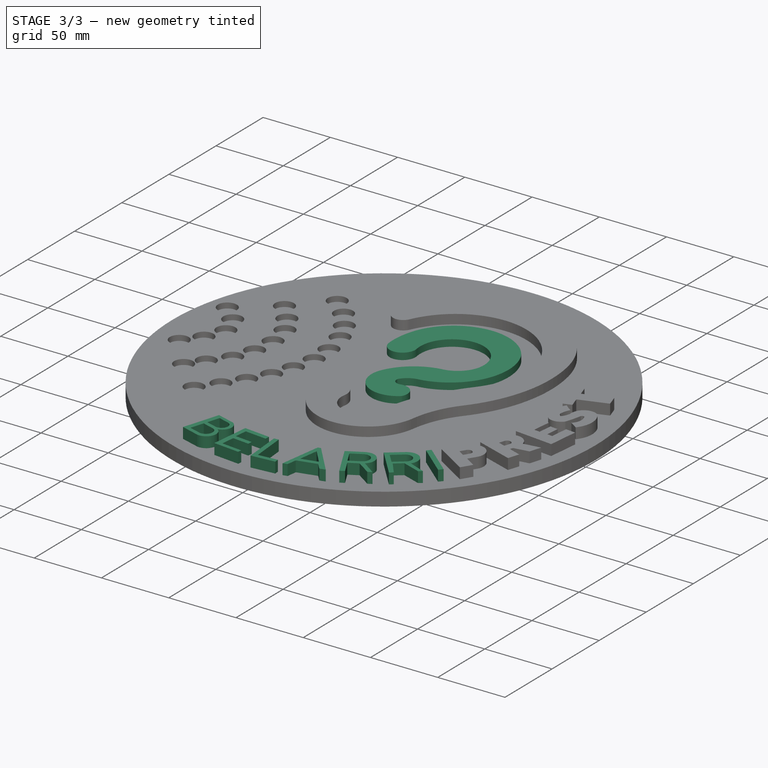
[diagram: stage 3 of 3 — iso view after this stage's code; geometry added in this stage tinted green]
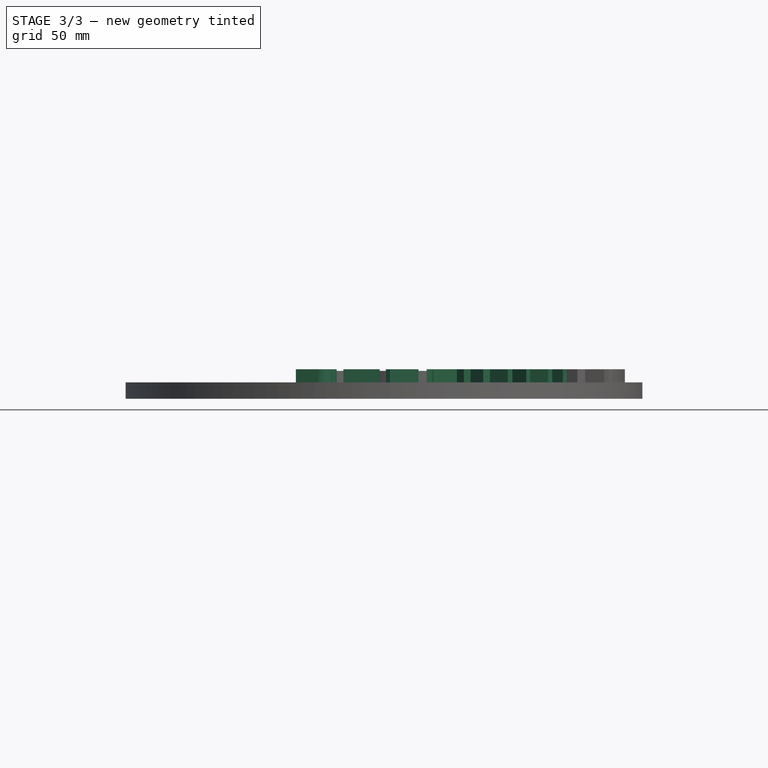
[diagram: stage 3 of 3 — front view after this stage's code; geometry added in this stage tinted green]
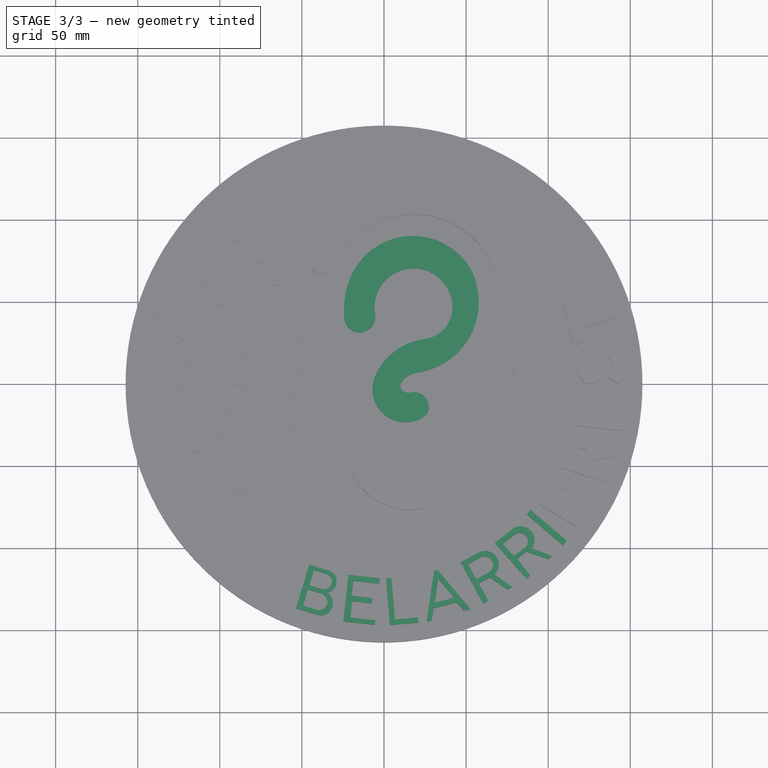
[diagram: stage 3 of 3 — top view after this stage's code; geometry added in this stage tinted green]
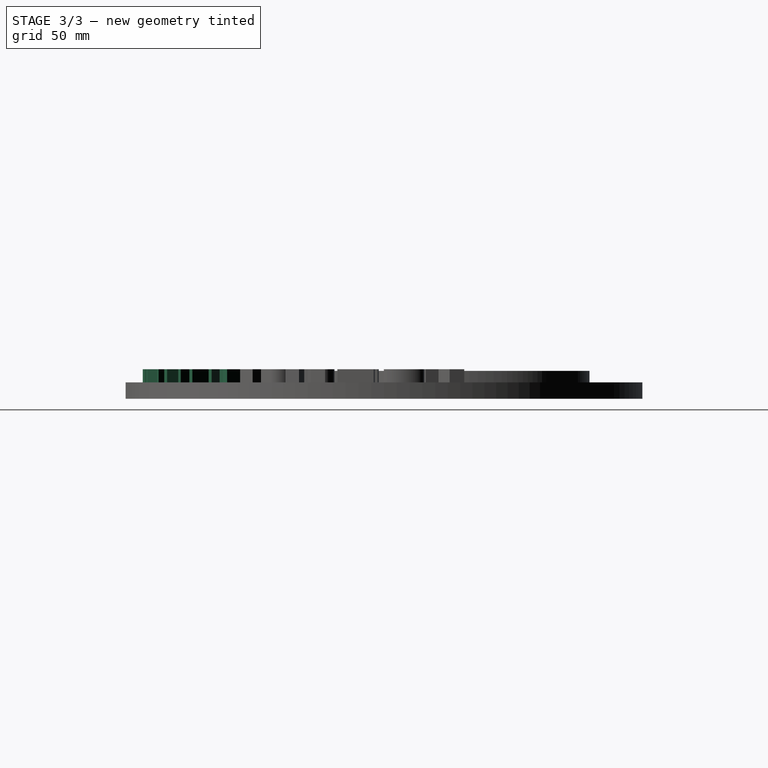
[diagram: stage 3 of 3 — right view after this stage's code; geometry added in this stage tinted green]
FEATURE [PartDesign::Pad] Pad003
  BaseFeature = -> Pad002
  Length = 18
  Length2 = 100
  Profile = -> Sketch004
  Refine = true
  Type = 0
FEATURE [Sketcher::SketchObject] Sketch006
  MapMode = 5
  Support = -> [XY_Plane]
  sketch-geometry (12):
    g0: ArcOfCircle CenterX=17.9815 CenterY=46.5838 CenterZ=0 NormalX=0 NormalY=0 NormalZ=1 AngleXU=0 Radius=23.7036 StartAngle=6.28318 EndAngle=9.6009
    g1: ArcOfCircle CenterX=22.2456 CenterY=46.5837 CenterZ=0 NormalX=0 NormalY=0 NormalZ=1 AngleXU=0 Radius=19.4395 StartAngle=4.83973 EndAngle=6.28318
    g2: ArcOfCircle CenterX=29.5818 CenterY=-10.7138 CenterZ=0 NormalX=0 NormalY=0 NormalZ=1 AngleXU=0 Radius=38.3258 StartAngle=1.69814 EndAngle=2.71093
    g3: ArcOfCircle CenterX=13.1525 CenterY=-3.16573 CenterZ=0 NormalX=0 NormalY=0 NormalZ=1 AngleXU=0 Radius=20.2456 StartAngle=2.71093 EndAngle=5.05627
    g4: ArcOfCircle CenterX=13.787 CenterY=-4.93758 CenterZ=0 NormalX=0 NormalY=0 NormalZ=1 AngleXU=0 Radius=18.3636 StartAngle=5.05627 EndAngle=5.45256
    g5: ArcOfCircle CenterX=17.5005 CenterY=48.9125 CenterZ=0 NormalX=0 NormalY=0 NormalZ=1 AngleXU=0 Radius=41.1861 StartAngle=0.571514 EndAngle=2.78213
    g6: ArcOfCircle CenterX=28.5976 CenterY=44.7423 CenterZ=0 NormalX=0 NormalY=0 NormalZ=1 AngleXU=0 Radius=53.0409 StartAngle=2.78213 EndAngle=3.23321
    g7: ArcOfCircle CenterX=-14.7345 CenterY=40.7614 CenterZ=0 NormalX=0 NormalY=0 NormalZ=1 AngleXU=0 Radius=9.52635 StartAngle=3.23321 EndAngle=6.45931
    g8: ArcOfCircle CenterX=14.3703 CenterY=49.8697 CenterZ=0 NormalX=0 NormalY=0 NormalZ=1 AngleXU=0 Radius=43.3731 StartAngle=4.84442 EndAngle=6.79707
    g9: ArcOfCircle CenterX=21.8619 CenterY=-6.5412 CenterZ=0 NormalX=0 NormalY=0 NormalZ=1 AngleXU=0 Radius=13.5331 StartAngle=1.70283 EndAngle=2.63712
    g10: ArcOfCircle CenterX=14.6693 CenterY=-0.703807 CenterZ=0 NormalX=0 NormalY=0 NormalZ=1 AngleXU=0 Radius=4.70762 StartAngle=2.99153 EndAngle=4.98668
    g11: ArcOfCircle CenterX=18.133 CenterY=-14.1218 CenterZ=0 NormalX=0 NormalY=0 NormalZ=1 AngleXU=0 Radius=9.15188 StartAngle=5.78482 EndAngle=8.09546
  constraints (13):
    c: Tangent(g7,g0) = 1.5708
    c: Tangent(g1,g0) = -1.5708
    c: Tangent(g2,g1) = 1.5708
    c: Tangent(g3,g2) = -1.5708
    c: Tangent(g4,g3) = -1.5708
    c: Tangent(g7,g6) = -1.5708
    c: Tangent(g6,g5) = -1.5708
    c: Coincident(g8,g5)
    c: PointOnObject(g9,g-1)
    c: Coincident(g10,g9)
    c: Coincident(g11,g10)
    c: Coincident(g11,g4)
    c: Tangent(g9,g8) = 1.5708
FEATURE [PartDesign::Pad] Pad004
  BaseFeature = -> Pad003
  Length = 15
  Length2 = 100
  Profile = -> Sketch006
  Refine = true
  Type = 0
FEATURE [PartDesign::Body] Body
  Group = -> [Sketch,Sketch001,Pad,Pad001,Sketch002,Pocket,Sketch003,Sketch004,Sketch005,Pad002,Pad003,Sketch006,Pad004]
  Origin = -> Origin
  Tip = -> Pad004
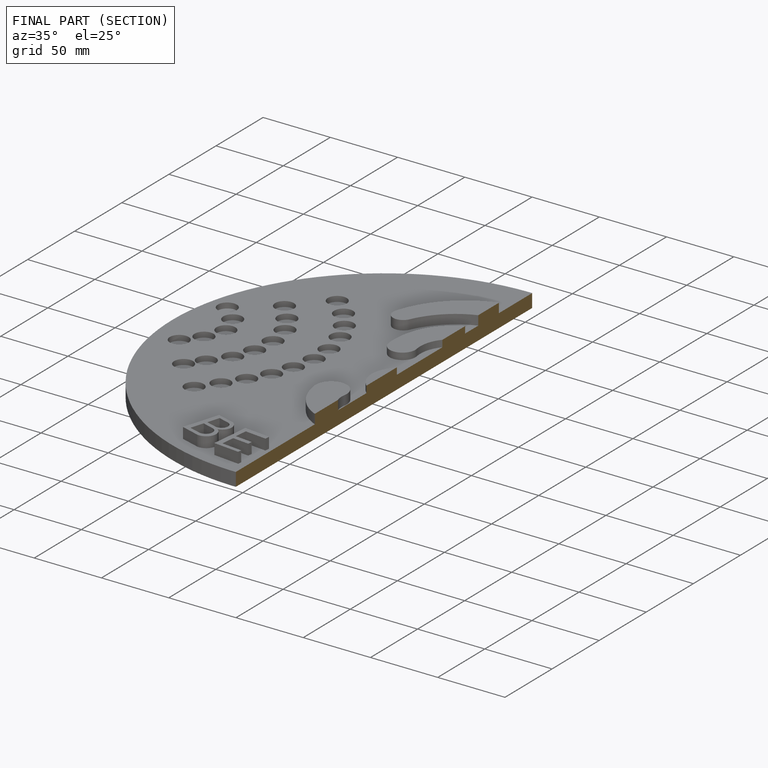
[diagram: finished part — half-section view (interior)]
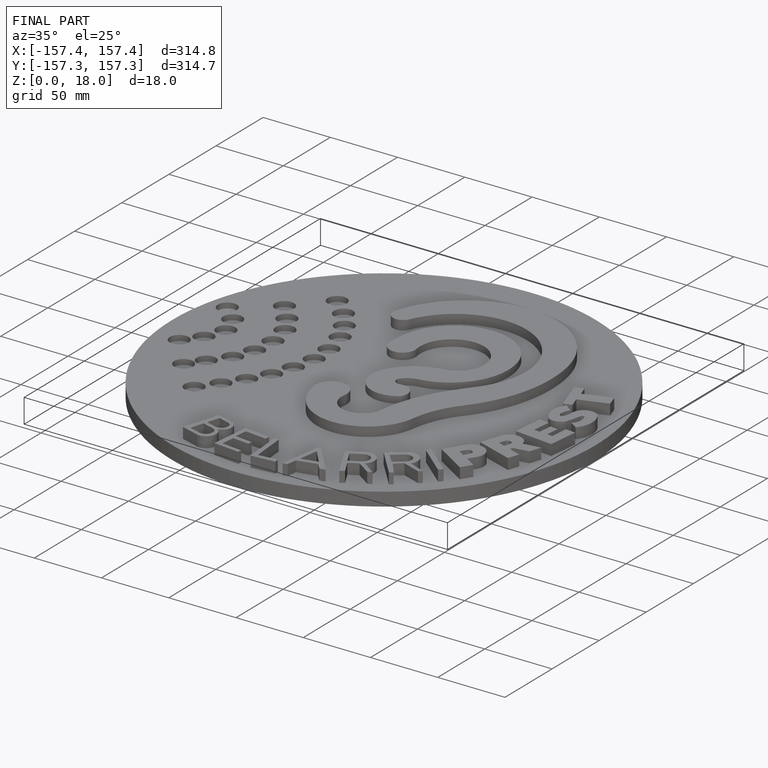
[diagram: finished part — iso view with bounding-box wireframe]
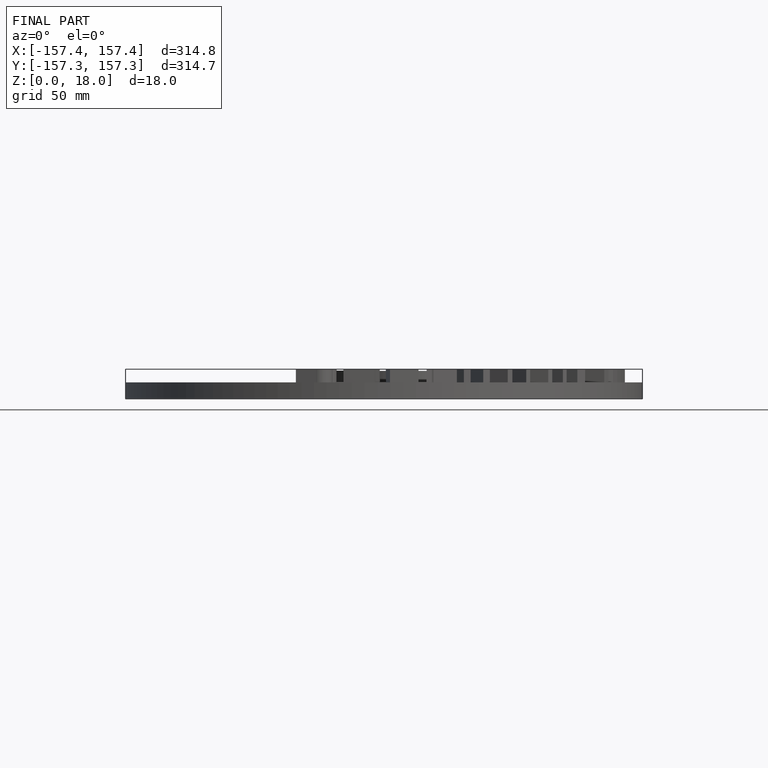
[diagram: finished part — front view with bounding-box wireframe]
